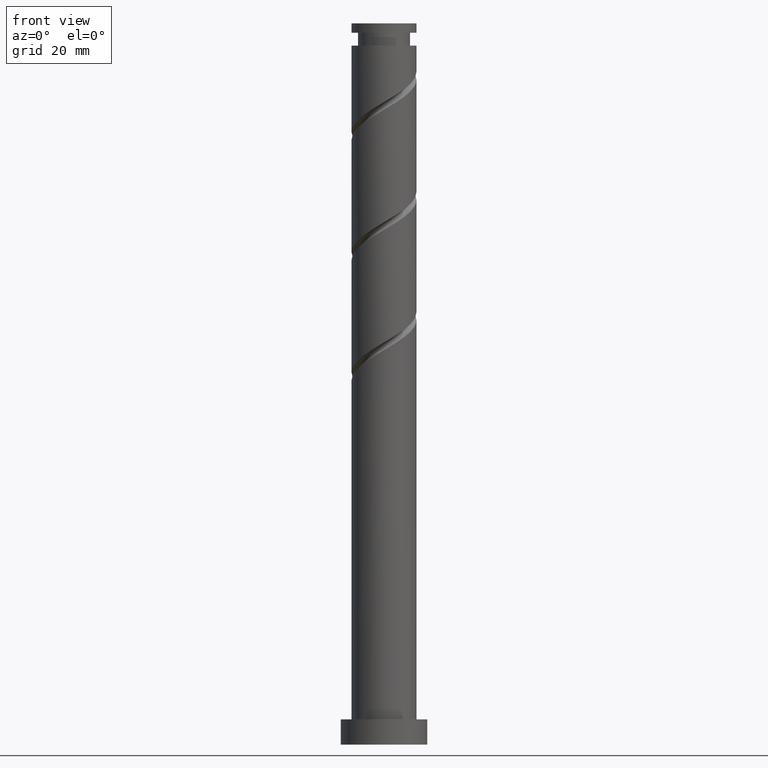
[diagram: clean part render]
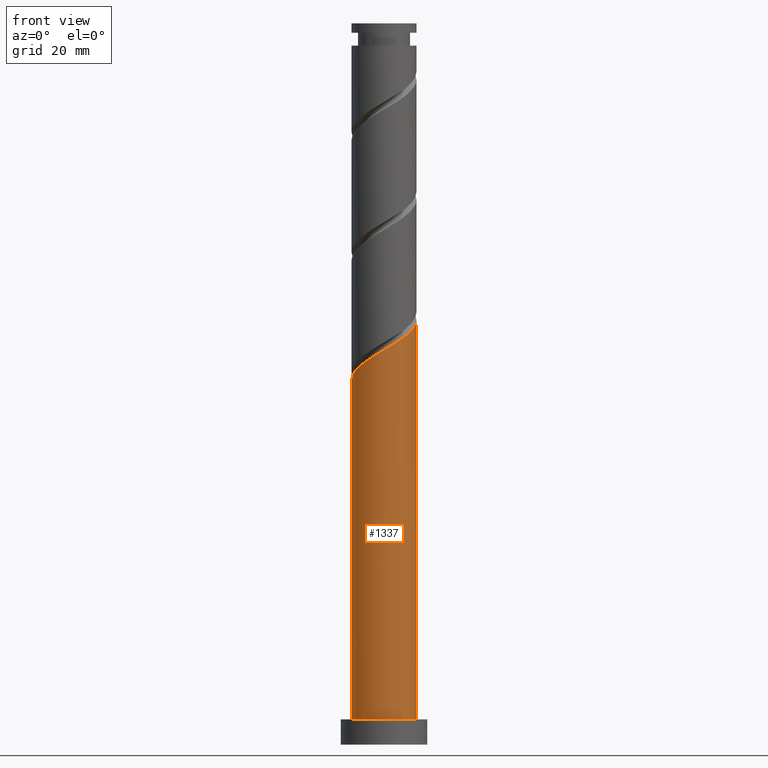
[diagram: same view with one face highlighted and labeled with its STEP entity id]
A machine part, front view. The second image highlights one B-rep face of the part: STEP entity #1337.
In plain terms, the highlighted cylindrical surface (edge-blend (fillet) strip) has radius 9 mm, axis along (-0, -0, -1).
Its self-contained STEP definition (entity closure, byte-faithful):
#17 = VERTEX_POINT ( 'NONE', #799 ) ;
#29 = CARTESIAN_POINT ( 'NONE',  ( -3.982468481593957499, -8.157442465804582099, 107.0195247114235713 ) ) ;
#39 = CARTESIAN_POINT ( 'NONE',  ( 8.910223043744862181, -1.735467689275522529, 116.7417469336457856 ) ) ;
#57 = CARTESIAN_POINT ( 'NONE',  ( -5.958070628232110089, -6.848745664630791374, 105.6306358225346713 ) ) ;
#62 = CARTESIAN_POINT ( 'NONE',  ( -9.000000000000001776, 0.000000000000000000, 7.000000000000000000 ) ) ;
#158 = LINE ( 'NONE', #1485, #1034 ) ;
#166 = CARTESIAN_POINT ( 'NONE',  ( 8.533832754774719476, -2.858968085434740125, 116.0473024892013285 ) ) ;
#187 = DIRECTION ( 'NONE',  ( -0.000000000000000000, -0.000000000000000000, -1.000000000000000000 ) ) ;
#195 = CYLINDRICAL_SURFACE ( 'NONE', #268, 9.000000000000001776 ) ;
#203 = CARTESIAN_POINT ( 'NONE',  ( 1.790977386791918091, -8.820000000000012719, 110.4917469336457430 ) ) ;
#251 = ORIENTED_EDGE ( 'NONE', *, *, #1254, .F. ) ;
#268 = AXIS2_PLACEMENT_3D ( 'NONE', #1401, #983, #1107 ) ;
#279 = VERTEX_POINT ( 'NONE', #1160 ) ;
#317 = CARTESIAN_POINT ( 'NONE',  ( 9.000000000000012434, -0.2766775649190519326, 117.5983499237409120 ) ) ;
#338 = CARTESIAN_POINT ( 'NONE',  ( 8.983004844919284082, -0.5528326656022223284, 117.4361913780902000 ) ) ;
#370 = VERTEX_POINT ( 'NONE', #62 ) ;
#405 = ORIENTED_EDGE ( 'NONE', *, *, #701, .F. ) ;
#450 = CARTESIAN_POINT ( 'NONE',  ( 5.073318164499760030, -7.527640107733501118, 112.5750802669791142 ) ) ;
#461 = CARTESIAN_POINT ( 'NONE',  ( 5.961031914565275258, -6.742855367982803827, 113.2695247114235428 ) ) ;
#469 = CARTESIAN_POINT ( 'NONE',  ( -7.527640107733497565, -5.073318164499760918, 104.2417469336457856 ) ) ;
#524 = EDGE_LOOP ( 'NONE', ( #405, #251, #1373, #1328 ) ) ;
#559 = VERTEX_POINT ( 'NONE', #1253 ) ;
#700 = CARTESIAN_POINT ( 'NONE',  ( 9.000000000000014211, 2.093529822106821769E-16, 117.7615136117690611 ) ) ;
#701 = EDGE_CURVE ( 'NONE', #559, #279, #158, .T. ) ;
#709 = CARTESIAN_POINT ( 'NONE',  ( -8.584213353906314126, -2.952152415512750760, 102.8528580447568714 ) ) ;
#739 = CARTESIAN_POINT ( 'NONE',  ( -9.000000000000014211, -5.652530519688419145E-15, 101.0948469451023755 ) ) ;
#799 = CARTESIAN_POINT ( 'NONE',  ( -9.000000000000014211, -5.652530519688418356E-15, 101.0948469451023755 ) ) ;
#831 = CARTESIAN_POINT ( 'NONE',  ( 4.012735290006252953, -8.055926730819905401, 111.8806358225346571 ) ) ;
#871 = CARTESIAN_POINT ( 'NONE',  ( 7.503094065217681852, -4.970269554913032906, 114.6584136003124712 ) ) ;
#881 = DIRECTION ( 'NONE',  ( -0.000000000000000000, -0.000000000000000000, -1.000000000000000000 ) ) ;
#917 = EDGE_CURVE ( 'NONE', #17, #370, #1024, .T. ) ;
#964 = AXIS2_PLACEMENT_3D ( 'NONE', #1116, #1540, #1511 ) ;
#974 = CARTESIAN_POINT ( 'NONE',  ( 2.952152415512749872, -8.584213353906314126, 111.1861913780902427 ) ) ;
#983 = DIRECTION ( 'NONE',  ( -0.000000000000000000, -0.000000000000000000, -1.000000000000000000 ) ) ;
#993 = CARTESIAN_POINT ( 'NONE',  ( 8.157442465804580323, -3.982468481593957499, 115.3528580447568999 ) ) ;
#1004 = CARTESIAN_POINT ( 'NONE',  ( -2.858968085434739237, -8.533832754774719476, 107.7139691558679715 ) ) ;
#1013 = CARTESIAN_POINT ( 'NONE',  ( -9.000000000000014211, -0.9045340337332994363, 101.6282733142916470 ) ) ;
#1024 = LINE ( 'NONE', #1149, #1403 ) ;
#1034 = VECTOR ( 'NONE', #187, 1000.000000000000000 ) ;
#1081 = CIRCLE ( 'NONE', #964, 9.000000000000001776 ) ;
#1107 = DIRECTION ( 'NONE',  ( -1.000000000000000000, 0.000000000000000000, 0.000000000000000000 ) ) ;
#1116 = CARTESIAN_POINT ( 'NONE',  ( 0.000000000000000000, 0.000000000000000000, 7.000000000000000000 ) ) ;
#1149 = CARTESIAN_POINT ( 'NONE',  ( -9.000000000000001776, 0.000000000000000000, 200.0000000000000000 ) ) ;
#1160 = CARTESIAN_POINT ( 'NONE',  ( 9.000000000000001776, 1.102182119232617911E-15, 7.000000000000000000 ) ) ;
#1242 = CARTESIAN_POINT ( 'NONE',  ( -6.742855367982802939, -5.961031914565275258, 104.9361913780902000 ) ) ;
#1251 = CARTESIAN_POINT ( 'NONE',  ( -8.055926730819901849, -4.012735290006255617, 103.5473024892013143 ) ) ;
#1253 = CARTESIAN_POINT ( 'NONE',  ( 9.000000000000014211, 2.093529822106821769E-16, 117.7615136117690611 ) ) ;
#1254 = EDGE_CURVE ( 'NONE', #17, #559, #1584, .T. ) ;
#1279 = CARTESIAN_POINT ( 'NONE',  ( -8.820000000000012719, -1.790977386791918535, 102.1584136003124286 ) ) ;
#1328 = ORIENTED_EDGE ( 'NONE', *, *, #1357, .T. ) ;
#1337 = ADVANCED_FACE ( 'NONE', ( #1529 ), #195, .T. ) ;
#1357 = EDGE_CURVE ( 'NONE', #370, #279, #1081, .T. ) ;
#1373 = ORIENTED_EDGE ( 'NONE', *, *, #917, .T. ) ;
#1374 = CARTESIAN_POINT ( 'NONE',  ( -1.735467689275518532, -8.910223043744863958, 108.4084136003124712 ) ) ;
#1401 = CARTESIAN_POINT ( 'NONE',  ( 0.000000000000000000, 0.000000000000000000, 200.0000000000000000 ) ) ;
#1403 = VECTOR ( 'NONE', #881, 1000.000000000000000 ) ;
#1485 = CARTESIAN_POINT ( 'NONE',  ( 9.000000000000001776, 1.102182119232617911E-15, 200.0000000000000000 ) ) ;
#1511 = DIRECTION ( 'NONE',  ( 1.000000000000000000, 0.000000000000000000, 0.000000000000000000 ) ) ;
#1520 = CARTESIAN_POINT ( 'NONE',  ( -4.970269554913030241, -7.503094065217687181, 106.3250802669790858 ) ) ;
#1529 = FACE_OUTER_BOUND ( 'NONE', #524, .T. ) ;
#1540 = DIRECTION ( 'NONE',  ( 0.000000000000000000, 0.000000000000000000, 1.000000000000000000 ) ) ;
#1549 = CARTESIAN_POINT ( 'NONE',  ( 0.6298023580710828684, -9.055786646093720194, 109.7973024892013427 ) ) ;
#1584 =( BOUNDED_CURVE ( )  B_SPLINE_CURVE ( 2, ( #739, #1013, #1279, #709, #1251, #469, #1242, #57, #1520, #29, #1004, #1374, #1667, #1549, #203, #974, #831, #450, #461, #1687, #871, #993, #166, #39, #338, #317, #700 ),
 .UNSPECIFIED., .F., .T. ) 
 B_SPLINE_CURVE_WITH_KNOTS ( ( 3, 2, 2, 2, 2, 2, 2, 2, 2, 2, 2, 2, 2, 3 ),
 ( 0.05453176698144638485, 0.06250000000000000000, 0.07291666666666662966, 0.08333333333333337034, 0.09375000000000000000, 0.1041666666666666297, 0.1145833333333333703, 0.1250000000000000000, 0.1354166666666666297, 0.1458333333333333703, 0.1562500000000000000, 0.1666666666666666297, 0.1770833333333333703, 0.1795317669814464612 ),
 .UNSPECIFIED. ) 
 CURVE ( )  GEOMETRIC_REPRESENTATION_ITEM ( )  RATIONAL_B_SPLINE_CURVE ( ( 0.9062941362546402813, 0.9031415850403445855, 0.9090909090909201629, 0.9013135103398384196, 0.9090909090909201629, 0.9013135103398384196, 0.9090909090909201629, 0.9013135103398384196, 0.9090909090909201629, 0.9013135103398384196, 0.9090909090909201629, 0.9013135103398384196, 0.9090909090909201629, 0.9013135103398384196, 0.9090909090909201629, 0.9013135103398384196, 0.9090909090909201629, 0.9013135103398384196, 0.9090909090909201629, 0.9013135103398384196, 0.9090909090909201629, 0.9013135103398384196, 0.9090909090909201629, 0.9013135103398384196, 0.9090909090909201629, 0.9072628343904137749, 0.9062941362546402813 ) ) 
 REPRESENTATION_ITEM ( '' )  );
#1667 = CARTESIAN_POINT ( 'NONE',  ( -0.5528326656022179986, -8.983004844919284082, 109.1028580447568430 ) ) ;
#1687 = CARTESIAN_POINT ( 'NONE',  ( 6.848745664630791374, -5.958070628232110089, 113.9639691558679999 ) ) ;